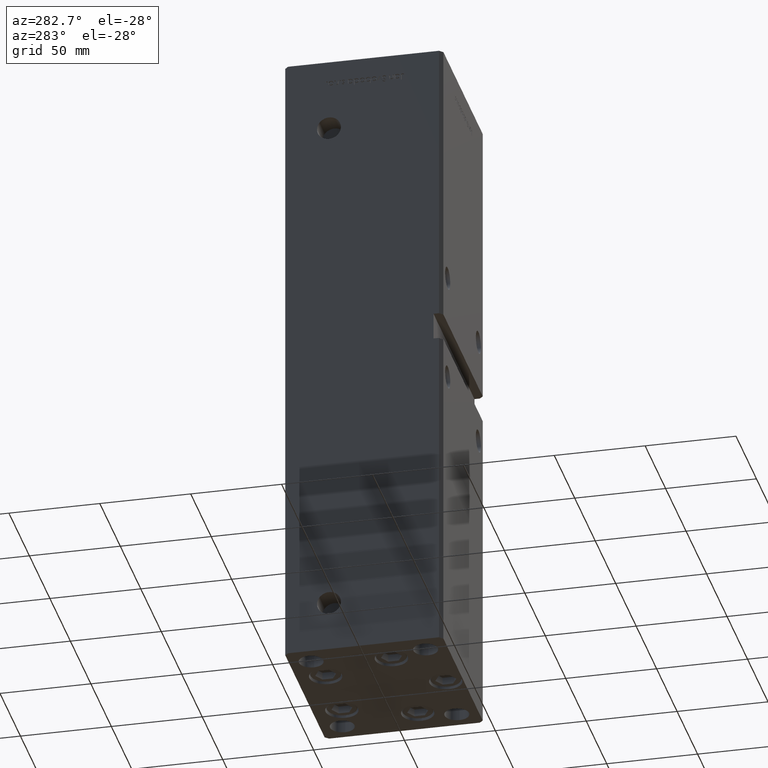
[diagram: clean part render]
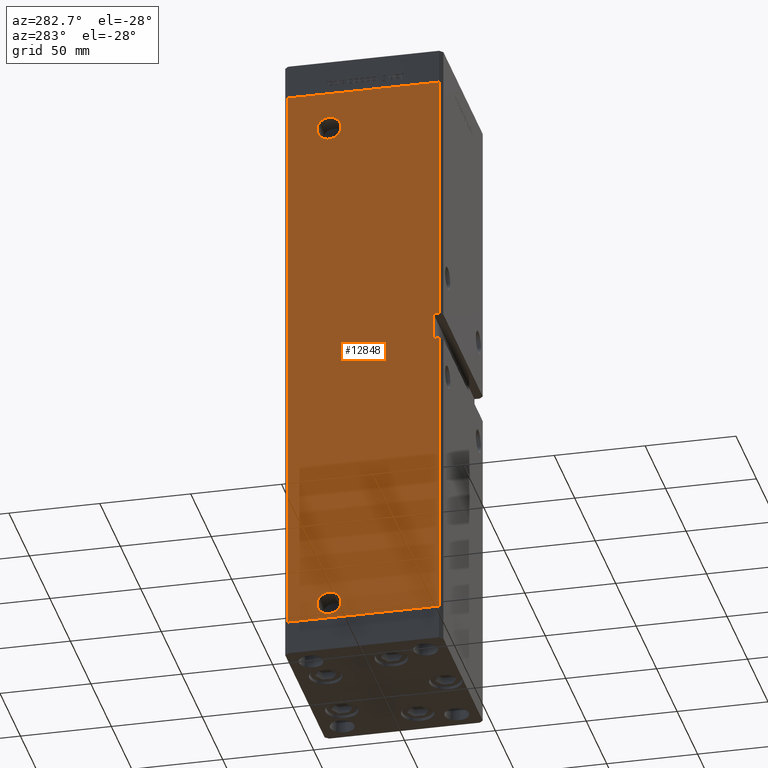
[diagram: same view with one face highlighted and labeled with its STEP entity id]
A machine part, auxiliary view. The second image highlights one B-rep face of the part: STEP entity #12848.
In plain terms, the highlighted planar face has unit normal (1, 0, 0).
Its self-contained STEP definition (entity closure, byte-faithful):
#333 = VERTEX_POINT ( 'NONE', #4272 ) ;
#591 = EDGE_CURVE ( 'NONE', #23015, #43577, #3412, .T. ) ;
#1651 = DIRECTION ( 'NONE',  ( -1.000000000000000000, -2.275047181608927644E-16, 0.000000000000000000 ) ) ;
#1775 = DIRECTION ( 'NONE',  ( -4.625929269271481969E-16, 0.000000000000000000, -1.000000000000000000 ) ) ;
#1893 = VECTOR ( 'NONE', #25896, 1000.000000000000000 ) ;
#1921 = CIRCLE ( 'NONE', #28501, 6.580000000000044480 ) ;
#2199 = ORIENTED_EDGE ( 'NONE', *, *, #22071, .F. ) ;
#2356 = VERTEX_POINT ( 'NONE', #35195 ) ;
#2560 = ORIENTED_EDGE ( 'NONE', *, *, #4900, .F. ) ;
#3412 = LINE ( 'NONE', #48529, #34039 ) ;
#3806 = CARTESIAN_POINT ( 'NONE',  ( -50.00000000000000711, 19.00000000000000000, 9.000000000000007105 ) ) ;
#4241 = DIRECTION ( 'NONE',  ( 0.000000000000000000, -1.000000000000000000, 0.000000000000000000 ) ) ;
#4272 = CARTESIAN_POINT ( 'NONE',  ( -50.00000000000000711, 12.41999999999995552, 297.5000000000000000 ) ) ;
#4900 = EDGE_CURVE ( 'NONE', #5848, #19434, #29058, .T. ) ;
#4969 = CARTESIAN_POINT ( 'NONE',  ( -49.99999999999998579, -41.49999999999999289, 318.5000000000000000 ) ) ;
#5402 = EDGE_CURVE ( 'NONE', #10075, #15870, #28673, .T. ) ;
#5848 = VERTEX_POINT ( 'NONE', #12685 ) ;
#6027 = EDGE_CURVE ( 'NONE', #32838, #23015, #41349, .T. ) ;
#6747 = VECTOR ( 'NONE', #12950, 1000.000000000000000 ) ;
#7380 = FACE_OUTER_BOUND ( 'NONE', #7735, .T. ) ;
#7735 = EDGE_LOOP ( 'NONE', ( #39808, #2560, #9140, #22884, #18644, #11969, #8541, #28429 ) ) ;
#8054 = DIRECTION ( 'NONE',  ( -0.000000000000000000, -0.000000000000000000, -1.000000000000000000 ) ) ;
#8279 = EDGE_CURVE ( 'NONE', #10075, #5848, #17114, .T. ) ;
#8351 = VECTOR ( 'NONE', #8054, 1000.000000000000000 ) ;
#8541 = ORIENTED_EDGE ( 'NONE', *, *, #6027, .T. ) ;
#8975 = EDGE_CURVE ( 'NONE', #11579, #2356, #14457, .T. ) ;
#9140 = ORIENTED_EDGE ( 'NONE', *, *, #8279, .F. ) ;
#9801 = DIRECTION ( 'NONE',  ( -0.000000000000000000, -0.000000000000000000, -1.000000000000000000 ) ) ;
#10075 = VERTEX_POINT ( 'NONE', #36239 ) ;
#11579 = VERTEX_POINT ( 'NONE', #25203 ) ;
#11969 = ORIENTED_EDGE ( 'NONE', *, *, #39933, .F. ) ;
#12323 = AXIS2_PLACEMENT_3D ( 'NONE', #44522, #36995, #4241 ) ;
#12685 = CARTESIAN_POINT ( 'NONE',  ( -49.99999999999998579, -38.50000000000000000, 163.0000000000000000 ) ) ;
#12840 = AXIS2_PLACEMENT_3D ( 'NONE', #36101, #20532, #32074 ) ;
#12848 = ADVANCED_FACE ( 'NONE', ( #7380, #23763, #52778 ), #40144, .F. ) ;
#12907 = DIRECTION ( 'NONE',  ( 0.000000000000000000, -1.000000000000000000, 0.000000000000000000 ) ) ;
#12950 = DIRECTION ( 'NONE',  ( -0.000000000000000000, -1.000000000000000000, -0.000000000000000000 ) ) ;
#12970 = CARTESIAN_POINT ( 'NONE',  ( -50.00000000000000711, 25.58000000000004448, 297.5000000000000000 ) ) ;
#13905 = CARTESIAN_POINT ( 'NONE',  ( -50.00000000000001421, 41.49999999999999289, 318.5000000000000000 ) ) ;
#14383 = VECTOR ( 'NONE', #32950, 1000.000000000000000 ) ;
#14431 = DIRECTION ( 'NONE',  ( -1.000000000000000000, -2.275047181608927644E-16, 0.000000000000000000 ) ) ;
#14457 = CIRCLE ( 'NONE', #18748, 6.580000000000002736 ) ;
#14839 = VERTEX_POINT ( 'NONE', #37237 ) ;
#15661 = AXIS2_PLACEMENT_3D ( 'NONE', #46775, #1651, #50290 ) ;
#15870 = VERTEX_POINT ( 'NONE', #40152 ) ;
#16333 = CARTESIAN_POINT ( 'NONE',  ( -49.99999999999998579, -41.49999999999992895, 163.0000000000000000 ) ) ;
#16689 = DIRECTION ( 'NONE',  ( 0.000000000000000000, -1.000000000000000000, 0.000000000000000000 ) ) ;
#17114 = LINE ( 'NONE', #38315, #42743 ) ;
#17593 = CARTESIAN_POINT ( 'NONE',  ( -49.99999999999998579, -41.49999999999999289, 318.5000000000000000 ) ) ;
#18196 = CARTESIAN_POINT ( 'NONE',  ( -50.00000000000000711, 19.00000000000000000, 297.5000000000000000 ) ) ;
#18371 = LINE ( 'NONE', #30193, #1893 ) ;
#18644 = ORIENTED_EDGE ( 'NONE', *, *, #22746, .F. ) ;
#18748 = AXIS2_PLACEMENT_3D ( 'NONE', #3806, #24485, #16689 ) ;
#19125 = VERTEX_POINT ( 'NONE', #12970 ) ;
#19434 = VERTEX_POINT ( 'NONE', #16333 ) ;
#20532 = DIRECTION ( 'NONE',  ( 1.000000000000000000, 3.344045254895050480E-16, -0.000000000000000000 ) ) ;
#22071 = EDGE_CURVE ( 'NONE', #333, #19125, #50002, .T. ) ;
#22746 = EDGE_CURVE ( 'NONE', #14839, #15870, #41758, .T. ) ;
#22884 = ORIENTED_EDGE ( 'NONE', *, *, #5402, .T. ) ;
#23015 = VERTEX_POINT ( 'NONE', #37127 ) ;
#23763 = FACE_BOUND ( 'NONE', #47597, .T. ) ;
#24447 = CARTESIAN_POINT ( 'NONE',  ( -50.00000000000001421, 41.49999999999999289, 318.5000000000000000 ) ) ;
#24485 = DIRECTION ( 'NONE',  ( -1.000000000000000000, -2.275047181608927644E-16, 0.000000000000000000 ) ) ;
#25020 = VECTOR ( 'NONE', #30724, 1000.000000000000000 ) ;
#25203 = CARTESIAN_POINT ( 'NONE',  ( -50.00000000000000711, 25.58000000000000185, 9.000000000000007105 ) ) ;
#25564 = CARTESIAN_POINT ( 'NONE',  ( -49.99999999999998579, -38.50000000000000000, 163.0000000000000000 ) ) ;
#25896 = DIRECTION ( 'NONE',  ( 3.344045254895050973E-16, -1.000000000000000000, 0.000000000000000000 ) ) ;
#25901 = CARTESIAN_POINT ( 'NONE',  ( -49.99999999999997868, -38.50000000000000000, 178.0000000000000284 ) ) ;
#28429 = ORIENTED_EDGE ( 'NONE', *, *, #591, .T. ) ;
#28501 = AXIS2_PLACEMENT_3D ( 'NONE', #18196, #14431, #12907 ) ;
#28673 = LINE ( 'NONE', #25901, #14383 ) ;
#29058 = LINE ( 'NONE', #25564, #6747 ) ;
#30193 = CARTESIAN_POINT ( 'NONE',  ( -50.00000000000001421, 41.49999999999999289, 318.5000000000000000 ) ) ;
#30724 = DIRECTION ( 'NONE',  ( -0.000000000000000000, -0.000000000000000000, -1.000000000000000000 ) ) ;
#30900 = EDGE_CURVE ( 'NONE', #19434, #43577, #33960, .T. ) ;
#31982 = ORIENTED_EDGE ( 'NONE', *, *, #43896, .F. ) ;
#32074 = DIRECTION ( 'NONE',  ( -3.344045254895050480E-16, 1.000000000000000000, 0.000000000000000000 ) ) ;
#32838 = VERTEX_POINT ( 'NONE', #13905 ) ;
#32950 = DIRECTION ( 'NONE',  ( -0.000000000000000000, -1.000000000000000000, -0.000000000000000000 ) ) ;
#33960 = LINE ( 'NONE', #17593, #50238 ) ;
#34039 = VECTOR ( 'NONE', #40472, 1000.000000000000000 ) ;
#35195 = CARTESIAN_POINT ( 'NONE',  ( -50.00000000000000711, 12.41999999999999638, 9.000000000000007105 ) ) ;
#36101 = CARTESIAN_POINT ( 'NONE',  ( -50.00000000000001421, 41.49999999999999289, 318.5000000000000000 ) ) ;
#36239 = CARTESIAN_POINT ( 'NONE',  ( -49.99999999999997868, -38.50000000000000000, 178.0000000000000284 ) ) ;
#36995 = DIRECTION ( 'NONE',  ( -1.000000000000000000, -2.275047181608927644E-16, 0.000000000000000000 ) ) ;
#37127 = CARTESIAN_POINT ( 'NONE',  ( -50.00000000000001421, 41.49999999999999289, 0.000000000000000000 ) ) ;
#37237 = CARTESIAN_POINT ( 'NONE',  ( -49.99999999999998579, -41.49999999999999289, 318.5000000000000000 ) ) ;
#38095 = CIRCLE ( 'NONE', #12323, 6.580000000000002736 ) ;
#38315 = CARTESIAN_POINT ( 'NONE',  ( -49.99999999999997868, -38.50000000000000000, 178.0000000000000284 ) ) ;
#39808 = ORIENTED_EDGE ( 'NONE', *, *, #30900, .F. ) ;
#39933 = EDGE_CURVE ( 'NONE', #32838, #14839, #18371, .T. ) ;
#40144 = PLANE ( 'NONE',  #12840 ) ;
#40152 = CARTESIAN_POINT ( 'NONE',  ( -49.99999999999997868, -41.50000000000000000, 178.0000000000000284 ) ) ;
#40472 = DIRECTION ( 'NONE',  ( 3.344045254895050973E-16, -1.000000000000000000, 0.000000000000000000 ) ) ;
#41050 = EDGE_CURVE ( 'NONE', #19125, #333, #1921, .T. ) ;
#41349 = LINE ( 'NONE', #24447, #8351 ) ;
#41758 = LINE ( 'NONE', #4969, #25020 ) ;
#42743 = VECTOR ( 'NONE', #1775, 1000.000000000000000 ) ;
#43111 = EDGE_LOOP ( 'NONE', ( #2199, #44142 ) ) ;
#43577 = VERTEX_POINT ( 'NONE', #45380 ) ;
#43896 = EDGE_CURVE ( 'NONE', #2356, #11579, #38095, .T. ) ;
#44142 = ORIENTED_EDGE ( 'NONE', *, *, #41050, .F. ) ;
#44522 = CARTESIAN_POINT ( 'NONE',  ( -50.00000000000000711, 19.00000000000000000, 9.000000000000007105 ) ) ;
#45143 = ORIENTED_EDGE ( 'NONE', *, *, #8975, .F. ) ;
#45380 = CARTESIAN_POINT ( 'NONE',  ( -49.99999999999998579, -41.49999999999999289, 0.000000000000000000 ) ) ;
#46775 = CARTESIAN_POINT ( 'NONE',  ( -50.00000000000000711, 19.00000000000000000, 297.5000000000000000 ) ) ;
#47597 = EDGE_LOOP ( 'NONE', ( #31982, #45143 ) ) ;
#48529 = CARTESIAN_POINT ( 'NONE',  ( -50.00000000000001421, 41.49999999999999289, 0.000000000000000000 ) ) ;
#50002 = CIRCLE ( 'NONE', #15661, 6.580000000000044480 ) ;
#50238 = VECTOR ( 'NONE', #9801, 1000.000000000000000 ) ;
#50290 = DIRECTION ( 'NONE',  ( 0.000000000000000000, -1.000000000000000000, 0.000000000000000000 ) ) ;
#52778 = FACE_BOUND ( 'NONE', #43111, .T. ) ;